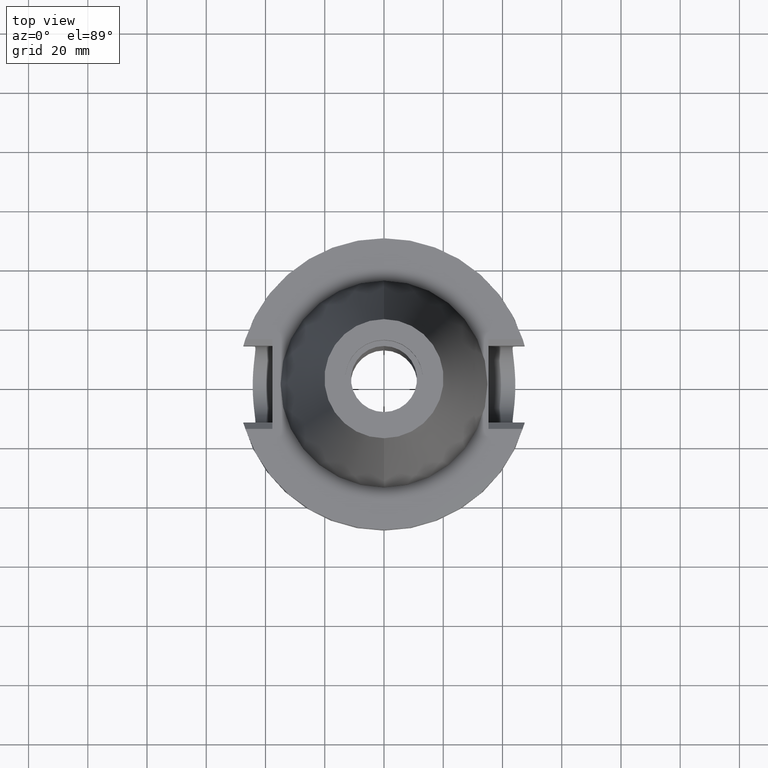
[diagram: clean part render]
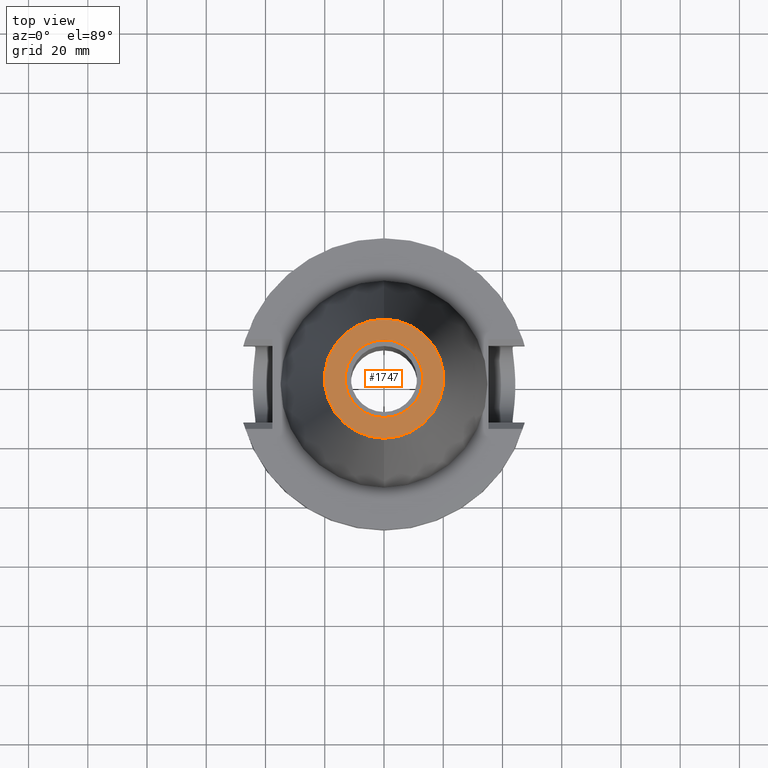
[diagram: same view with one face highlighted and labeled with its STEP entity id]
A machine part, top view. The second image highlights one B-rep face of the part: STEP entity #1747.
In plain terms, the highlighted planar face has unit normal (0, 0, -1).
Its self-contained STEP definition (entity closure, byte-faithful):
#17=CARTESIAN_POINT('',(0.E0,1.846767373114E-14,1.016E2));
#18=DIRECTION('',(0.E0,0.E0,-1.E0));
#19=DIRECTION('',(0.E0,-1.E0,0.E0));
#20=AXIS2_PLACEMENT_3D('',#17,#18,#19);
#26=CARTESIAN_POINT('',(0.E0,1.846767373114E-14,1.016E2));
#27=DIRECTION('',(0.E0,0.E0,-1.E0));
#28=DIRECTION('',(0.E0,1.E0,0.E0));
#29=AXIS2_PLACEMENT_3D('',#26,#27,#28);
#34=CARTESIAN_POINT('',(0.E0,2.594781638033E-14,1.016E2));
#35=DIRECTION('',(0.E0,0.E0,1.E0));
#36=DIRECTION('',(0.E0,-1.E0,0.E0));
#37=AXIS2_PLACEMENT_3D('',#34,#35,#36);
#42=CARTESIAN_POINT('',(0.E0,2.594781638033E-14,1.016E2));
#43=DIRECTION('',(0.E0,0.E0,1.E0));
#44=DIRECTION('',(0.E0,1.E0,0.E0));
#45=AXIS2_PLACEMENT_3D('',#42,#43,#44);
#1495=CARTESIAN_POINT('',(0.E0,-2.010832422388E1,1.016E2));
#1496=CARTESIAN_POINT('',(0.E0,2.010832422388E1,1.016E2));
#1497=VERTEX_POINT('',#1495);
#1498=VERTEX_POINT('',#1496);
#1499=CARTESIAN_POINT('',(0.E0,-1.3115E1,1.016E2));
#1500=CARTESIAN_POINT('',(0.E0,1.3115E1,1.016E2));
#1501=VERTEX_POINT('',#1499);
#1502=VERTEX_POINT('',#1500);
#1730=CARTESIAN_POINT('',(0.E0,2.468887947081E-14,1.016E2));
#1731=DIRECTION('',(0.E0,0.E0,-1.E0));
#1732=DIRECTION('',(0.E0,-1.E0,0.E0));
#1733=AXIS2_PLACEMENT_3D('',#1730,#1731,#1732);
#1734=PLANE('',#1733);
#1736=ORIENTED_EDGE('',*,*,#1735,.T.);
#1738=ORIENTED_EDGE('',*,*,#1737,.T.);
#1739=EDGE_LOOP('',(#1736,#1738));
#1740=FACE_OUTER_BOUND('',#1739,.F.);
#1742=ORIENTED_EDGE('',*,*,#1741,.T.);
#1744=ORIENTED_EDGE('',*,*,#1743,.T.);
#1745=EDGE_LOOP('',(#1742,#1744));
#1746=FACE_BOUND('',#1745,.F.);
#21=CIRCLE('',#20,2.010832422388E1);
#30=CIRCLE('',#29,2.010832422388E1);
#38=CIRCLE('',#37,1.3115E1);
#46=CIRCLE('',#45,1.3115E1);
#1735=EDGE_CURVE('',#1497,#1498,#21,.T.);
#1737=EDGE_CURVE('',#1498,#1497,#30,.T.);
#1741=EDGE_CURVE('',#1501,#1502,#38,.T.);
#1743=EDGE_CURVE('',#1502,#1501,#46,.T.);
#1747=ADVANCED_FACE('',(#1740,#1746),#1734,.F.);